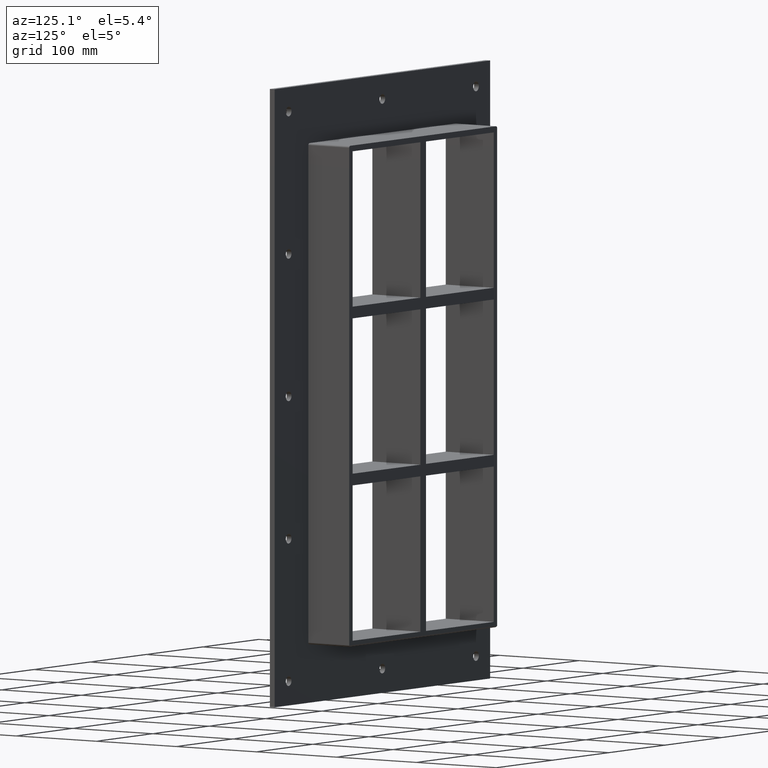
[diagram: clean part render]
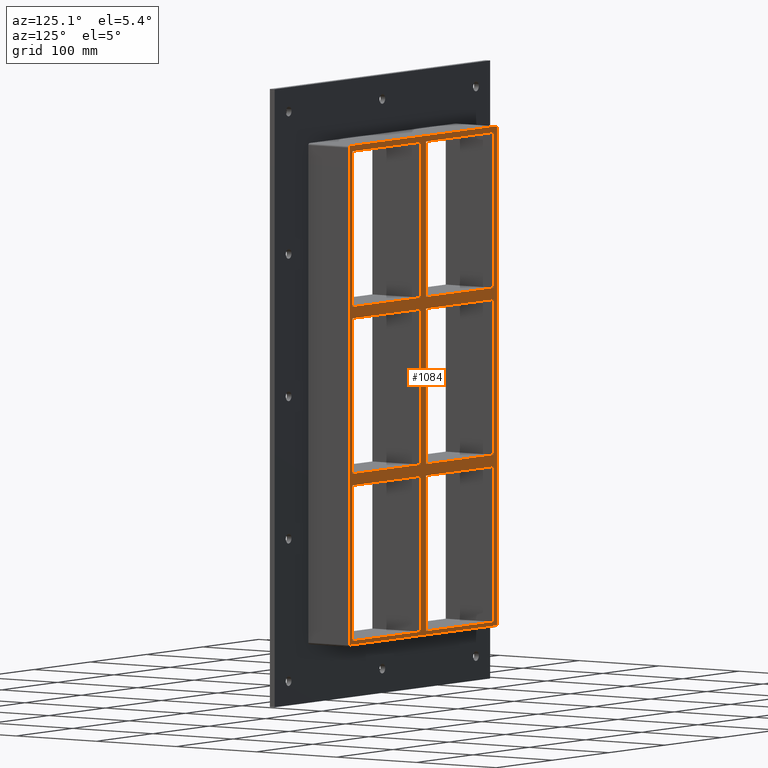
[diagram: same view with one face highlighted and labeled with its STEP entity id]
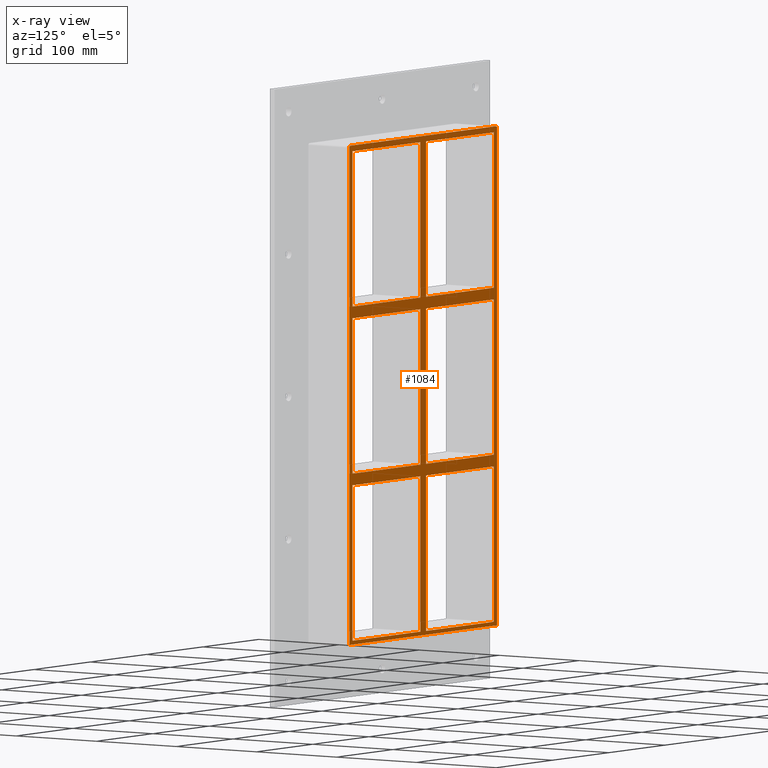
[diagram: x-ray of the same camera — body ghosted, the highlighted face saturated]
A machine part, auxiliary view. The second image highlights one B-rep face of the part: STEP entity #1084.
The next image is the same camera in x-ray: the body ghosted, the highlighted face saturated — about 0% of this face is hidden behind the body in this view.
In plain terms, the highlighted planar face has unit normal (0, 1, 0).
Its self-contained STEP definition (entity closure, byte-faithful):
#409=CARTESIAN_POINT('',(5.0,57.0,79.749999999989114));
#410=VERTEX_POINT('',#409);
#419=CARTESIAN_POINT('',(125.49999999999274,57.0,79.749999999989114));
#420=VERTEX_POINT('',#419);
#421=CARTESIAN_POINT('',(125.49999999999272,57.0,79.749999999989114));
#422=DIRECTION('',(-1.0,0.0,0.0));
#423=VECTOR('',#422,120.49999999999272);
#424=LINE('',#421,#423);
#425=EDGE_CURVE('',#420,#410,#424,.T.);
#451=CARTESIAN_POINT('',(5.0,57.0,91.749999999999801));
#452=VERTEX_POINT('',#451);
#467=CARTESIAN_POINT('',(125.4999999999996,57.0,91.749999999999801));
#468=VERTEX_POINT('',#467);
#475=CARTESIAN_POINT('',(5.0,57.0,91.749999999999801));
#476=DIRECTION('',(1.0,0.0,0.0));
#477=VECTOR('',#476,120.4999999999996);
#478=LINE('',#475,#477);
#479=EDGE_CURVE('',#452,#468,#478,.T.);
#489=CARTESIAN_POINT('',(-5.000000000000399,57.0,91.749999999999829));
#490=VERTEX_POINT('',#489);
#499=CARTESIAN_POINT('',(-125.49999999999875,57.0,91.749999999999801));
#500=VERTEX_POINT('',#499);
#501=CARTESIAN_POINT('',(-125.49999999999875,57.0,91.749999999999801));
#502=DIRECTION('',(1.0,0.0,0.0));
#503=VECTOR('',#502,120.49999999999835);
#504=LINE('',#501,#503);
#505=EDGE_CURVE('',#500,#490,#504,.T.);
#531=CARTESIAN_POINT('',(-5.000000000000396,57.0,79.749999999989143));
#532=VERTEX_POINT('',#531);
#547=CARTESIAN_POINT('',(-125.49999999999875,57.0,79.749999999989114));
#548=VERTEX_POINT('',#547);
#555=CARTESIAN_POINT('',(-5.000000000000398,57.0,79.749999999989114));
#556=DIRECTION('',(-1.0,0.0,0.0));
#557=VECTOR('',#556,120.49999999999835);
#558=LINE('',#555,#557);
#559=EDGE_CURVE('',#532,#548,#558,.T.);
#578=CARTESIAN_POINT('',(-125.49999999999875,57.0,-79.750000000000227));
#579=VERTEX_POINT('',#578);
#586=CARTESIAN_POINT('',(-125.5,57.0,79.749999999989114));
#587=DIRECTION('',(0.0,0.0,-1.0));
#588=VECTOR('',#587,159.49999999998934);
#589=LINE('',#586,#588);
#590=EDGE_CURVE('',#548,#579,#589,.T.);
#601=CARTESIAN_POINT('',(125.4999999999996,57.0,-79.750000000000227));
#602=VERTEX_POINT('',#601);
#603=CARTESIAN_POINT('',(125.5,57.0,-79.750000000000227));
#604=DIRECTION('',(0.0,0.0,1.0));
#605=VECTOR('',#604,159.49999999998934);
#606=LINE('',#603,#605);
#607=EDGE_CURVE('',#602,#420,#606,.T.);
#640=CARTESIAN_POINT('',(125.5,57.0,251.25));
#641=VERTEX_POINT('',#640);
#648=CARTESIAN_POINT('',(125.5,57.0,91.749999999999801));
#649=DIRECTION('',(0.0,0.0,1.0));
#650=VECTOR('',#649,159.5000000000002);
#651=LINE('',#648,#650);
#652=EDGE_CURVE('',#468,#641,#651,.T.);
#671=CARTESIAN_POINT('',(-5.000000000000426,57.0,251.25));
#672=VERTEX_POINT('',#671);
#679=CARTESIAN_POINT('',(-5.000000000000398,57.0,91.749999999999829));
#680=DIRECTION('',(0.0,0.0,1.0));
#681=VECTOR('',#680,159.50000000000017);
#682=LINE('',#679,#681);
#683=EDGE_CURVE('',#490,#672,#682,.T.);
#694=CARTESIAN_POINT('',(-5.000000000000373,57.0,-79.750000000000227));
#695=VERTEX_POINT('',#694);
#696=CARTESIAN_POINT('',(-5.000000000000368,57.0,-79.750000000000227));
#697=DIRECTION('',(0.0,0.0,1.0));
#698=VECTOR('',#697,159.49999999998937);
#699=LINE('',#696,#698);
#700=EDGE_CURVE('',#695,#532,#699,.T.);
#725=CARTESIAN_POINT('',(5.0,57.0,251.25));
#726=VERTEX_POINT('',#725);
#727=CARTESIAN_POINT('',(5.0,57.0,251.25));
#728=DIRECTION('',(0.0,0.0,-1.0));
#729=VECTOR('',#728,159.5000000000002);
#730=LINE('',#727,#729);
#731=EDGE_CURVE('',#726,#452,#730,.T.);
#755=CARTESIAN_POINT('',(5.0,57.0,-91.750000000010914));
#756=VERTEX_POINT('',#755);
#765=CARTESIAN_POINT('',(125.49999999999274,57.0,-91.750000000010914));
#766=VERTEX_POINT('',#765);
#767=CARTESIAN_POINT('',(125.49999999999272,57.0,-91.750000000010914));
#768=DIRECTION('',(-1.0,0.0,0.0));
#769=VECTOR('',#768,120.49999999999272);
#770=LINE('',#767,#769);
#771=EDGE_CURVE('',#766,#756,#770,.T.);
#797=CARTESIAN_POINT('',(-5.000000000000373,57.0,-91.750000000010914));
#798=VERTEX_POINT('',#797);
#813=CARTESIAN_POINT('',(-125.49999999999875,57.0,-91.750000000010914));
#814=VERTEX_POINT('',#813);
#821=CARTESIAN_POINT('',(-5.00000000000037,57.0,-91.750000000010914));
#822=DIRECTION('',(-1.0,0.0,0.0));
#823=VECTOR('',#822,120.49999999999838);
#824=LINE('',#821,#823);
#825=EDGE_CURVE('',#798,#814,#824,.T.);
#837=CARTESIAN_POINT('',(5.0,57.0,-79.750000000000227));
#838=VERTEX_POINT('',#837);
#852=CARTESIAN_POINT('',(5.0,57.0,-79.750000000000227));
#853=DIRECTION('',(1.0,0.0,0.0));
#854=VECTOR('',#853,120.4999999999996);
#855=LINE('',#852,#854);
#856=EDGE_CURVE('',#838,#602,#855,.T.);
#867=CARTESIAN_POINT('',(-125.49999999999875,57.0,-79.750000000000227));
#868=DIRECTION('',(1.0,0.0,0.0));
#869=VECTOR('',#868,120.49999999999838);
#870=LINE('',#867,#869);
#871=EDGE_CURVE('',#579,#695,#870,.T.);
#889=CARTESIAN_POINT('',(-125.5,57.0,251.25));
#890=VERTEX_POINT('',#889);
#891=CARTESIAN_POINT('',(-125.5,57.0,251.25));
#892=DIRECTION('',(0.0,0.0,-1.0));
#893=VECTOR('',#892,159.5000000000002);
#894=LINE('',#891,#893);
#895=EDGE_CURVE('',#890,#500,#894,.T.);
#920=CARTESIAN_POINT('',(125.5,57.0,-251.25));
#921=VERTEX_POINT('',#920);
#922=CARTESIAN_POINT('',(125.5,57.0,-251.25));
#923=DIRECTION('',(0.0,0.0,1.0));
#924=VECTOR('',#923,159.49999999998909);
#925=LINE('',#922,#924);
#926=EDGE_CURVE('',#921,#766,#925,.T.);
#945=CARTESIAN_POINT('',(-1.397096E-014,57.0,0.0));
#946=DIRECTION('',(0.0,1.0,0.0));
#947=DIRECTION('',(0.0,0.0,1.0));
#948=AXIS2_PLACEMENT_3D('',#945,#946,#947);
#949=PLANE('',#948);
#950=CARTESIAN_POINT('',(-131.50000000000003,57.0,-255.25000000000003));
#951=VERTEX_POINT('',#950);
#952=CARTESIAN_POINT('',(131.5,57.0,-255.25));
#953=VERTEX_POINT('',#952);
#954=CARTESIAN_POINT('',(-131.5,57.0,-255.25000000000003));
#955=DIRECTION('',(1.0,0.0,0.0));
#956=VECTOR('',#955,263.0);
#957=LINE('',#954,#956);
#958=EDGE_CURVE('',#951,#953,#957,.T.);
#959=ORIENTED_EDGE('',*,*,#958,.F.);
#960=CARTESIAN_POINT('',(-131.50000000000003,57.0,255.25));
#961=VERTEX_POINT('',#960);
#962=CARTESIAN_POINT('',(-131.50000000000003,57.0,-255.25));
#963=DIRECTION('',(0.0,0.0,1.0));
#964=VECTOR('',#963,510.5);
#965=LINE('',#962,#964);
#966=EDGE_CURVE('',#951,#961,#965,.T.);
#967=ORIENTED_EDGE('',*,*,#966,.T.);
#968=CARTESIAN_POINT('',(-129.50000000000003,57.0,257.25));
#969=VERTEX_POINT('',#968);
#970=CARTESIAN_POINT('',(-129.50000000000003,57.0,255.25));
#971=DIRECTION('',(0.0,-1.0,0.0));
#972=DIRECTION('',(-0.707106781186541,0.0,0.707106781186554));
#973=AXIS2_PLACEMENT_3D('',#970,#971,#972);
#974=CIRCLE('',#973,2.0);
#975=EDGE_CURVE('',#969,#961,#974,.T.);
#976=ORIENTED_EDGE('',*,*,#975,.F.);
#977=CARTESIAN_POINT('',(129.5,57.0,257.25));
#978=VERTEX_POINT('',#977);
#979=CARTESIAN_POINT('',(-129.50000000000003,57.0,257.25));
#980=DIRECTION('',(1.0,0.0,0.0));
#981=VECTOR('',#980,259.0);
#982=LINE('',#979,#981);
#983=EDGE_CURVE('',#969,#978,#982,.T.);
#984=ORIENTED_EDGE('',*,*,#983,.T.);
#985=CARTESIAN_POINT('',(131.5,57.0,255.25000000000003));
#986=VERTEX_POINT('',#985);
#987=CARTESIAN_POINT('',(129.5,57.0,255.25000000000003));
#988=DIRECTION('',(0.0,-1.0,0.0));
#989=DIRECTION('',(0.707106781186554,0.0,0.707106781186541));
#990=AXIS2_PLACEMENT_3D('',#987,#988,#989);
#991=CIRCLE('',#990,2.0);
#992=EDGE_CURVE('',#986,#978,#991,.T.);
#993=ORIENTED_EDGE('',*,*,#992,.F.);
#994=CARTESIAN_POINT('',(131.5,57.0,255.25));
#995=DIRECTION('',(0.0,0.0,-1.0));
#996=VECTOR('',#995,510.5);
#997=LINE('',#994,#996);
#998=EDGE_CURVE('',#986,#953,#997,.T.);
#999=ORIENTED_EDGE('',*,*,#998,.T.);
#1000=EDGE_LOOP('',(#959,#967,#976,#984,#993,#999));
#1001=FACE_OUTER_BOUND('',#1000,.T.);
#1002=ORIENTED_EDGE('',*,*,#590,.T.);
#1003=ORIENTED_EDGE('',*,*,#871,.T.);
#1004=ORIENTED_EDGE('',*,*,#700,.T.);
#1005=ORIENTED_EDGE('',*,*,#559,.T.);
#1006=EDGE_LOOP('',(#1002,#1003,#1004,#1005));
#1007=FACE_BOUND('',#1006,.T.);
#1008=ORIENTED_EDGE('',*,*,#652,.T.);
#1009=CARTESIAN_POINT('',(125.50000000000001,57.0,251.25));
#1010=DIRECTION('',(-1.0,0.0,0.0));
#1011=VECTOR('',#1010,120.50000000000001);
#1012=LINE('',#1009,#1011);
#1013=EDGE_CURVE('',#641,#726,#1012,.T.);
#1014=ORIENTED_EDGE('',*,*,#1013,.T.);
#1015=ORIENTED_EDGE('',*,*,#731,.T.);
#1016=ORIENTED_EDGE('',*,*,#479,.T.);
#1017=EDGE_LOOP('',(#1008,#1014,#1015,#1016));
#1018=FACE_BOUND('',#1017,.T.);
#1019=ORIENTED_EDGE('',*,*,#425,.T.);
#1020=CARTESIAN_POINT('',(5.0,57.0,79.749999999989114));
#1021=DIRECTION('',(0.0,0.0,-1.0));
#1022=VECTOR('',#1021,159.49999999998934);
#1023=LINE('',#1020,#1022);
#1024=EDGE_CURVE('',#410,#838,#1023,.T.);
#1025=ORIENTED_EDGE('',*,*,#1024,.T.);
#1026=ORIENTED_EDGE('',*,*,#856,.T.);
#1027=ORIENTED_EDGE('',*,*,#607,.T.);
#1028=EDGE_LOOP('',(#1019,#1025,#1026,#1027));
#1029=FACE_BOUND('',#1028,.T.);
#1030=ORIENTED_EDGE('',*,*,#505,.T.);
#1031=ORIENTED_EDGE('',*,*,#683,.T.);
#1032=CARTESIAN_POINT('',(-5.000000000000426,57.0,251.25));
#1033=DIRECTION('',(-1.0,0.0,0.0));
#1034=VECTOR('',#1033,120.49999999999957);
#1035=LINE('',#1032,#1034);
#1036=EDGE_CURVE('',#672,#890,#1035,.T.);
#1037=ORIENTED_EDGE('',*,*,#1036,.T.);
#1038=ORIENTED_EDGE('',*,*,#895,.T.);
#1039=EDGE_LOOP('',(#1030,#1031,#1037,#1038));
#1040=FACE_BOUND('',#1039,.T.);
#1041=CARTESIAN_POINT('',(-125.5,57.0,-251.25));
#1042=VERTEX_POINT('',#1041);
#1043=CARTESIAN_POINT('',(-125.5,57.0,-91.750000000010914));
#1044=DIRECTION('',(0.0,0.0,-1.0));
#1045=VECTOR('',#1044,159.49999999998909);
#1046=LINE('',#1043,#1045);
#1047=EDGE_CURVE('',#814,#1042,#1046,.T.);
#1048=ORIENTED_EDGE('',*,*,#1047,.T.);
#1049=CARTESIAN_POINT('',(-5.000000000000338,57.0,-251.25));
#1050=VERTEX_POINT('',#1049);
#1051=CARTESIAN_POINT('',(-125.5,57.0,-251.25));
#1052=DIRECTION('',(1.0,0.0,0.0));
#1053=VECTOR('',#1052,120.49999999999966);
#1054=LINE('',#1051,#1053);
#1055=EDGE_CURVE('',#1042,#1050,#1054,.T.);
#1056=ORIENTED_EDGE('',*,*,#1055,.T.);
#1057=CARTESIAN_POINT('',(-5.000000000000338,57.0,-251.25));
#1058=DIRECTION('',(0.0,0.0,1.0));
#1059=VECTOR('',#1058,159.49999999998909);
#1060=LINE('',#1057,#1059);
#1061=EDGE_CURVE('',#1050,#798,#1060,.T.);
#1062=ORIENTED_EDGE('',*,*,#1061,.T.);
#1063=ORIENTED_EDGE('',*,*,#825,.T.);
#1064=EDGE_LOOP('',(#1048,#1056,#1062,#1063));
#1065=FACE_BOUND('',#1064,.T.);
#1066=ORIENTED_EDGE('',*,*,#771,.T.);
#1067=CARTESIAN_POINT('',(5.0,57.0,-251.24999999998167));
#1068=VERTEX_POINT('',#1067);
#1069=CARTESIAN_POINT('',(5.0,57.0,-91.750000000010914));
#1070=DIRECTION('',(0.0,0.0,-1.0));
#1071=VECTOR('',#1070,159.49999999997078);
#1072=LINE('',#1069,#1071);
#1073=EDGE_CURVE('',#756,#1068,#1072,.T.);
#1074=ORIENTED_EDGE('',*,*,#1073,.T.);
#1075=CARTESIAN_POINT('',(5.0,57.0,-251.25));
#1076=DIRECTION('',(1.0,0.0,0.0));
#1077=VECTOR('',#1076,120.5);
#1078=LINE('',#1075,#1077);
#1079=EDGE_CURVE('',#1068,#921,#1078,.T.);
#1080=ORIENTED_EDGE('',*,*,#1079,.T.);
#1081=ORIENTED_EDGE('',*,*,#926,.T.);
#1082=EDGE_LOOP('',(#1066,#1074,#1080,#1081));
#1083=FACE_BOUND('',#1082,.T.);
#1084=ADVANCED_FACE('',(#1001,#1007,#1018,#1029,#1040,#1065,#1083),#949,.T.);